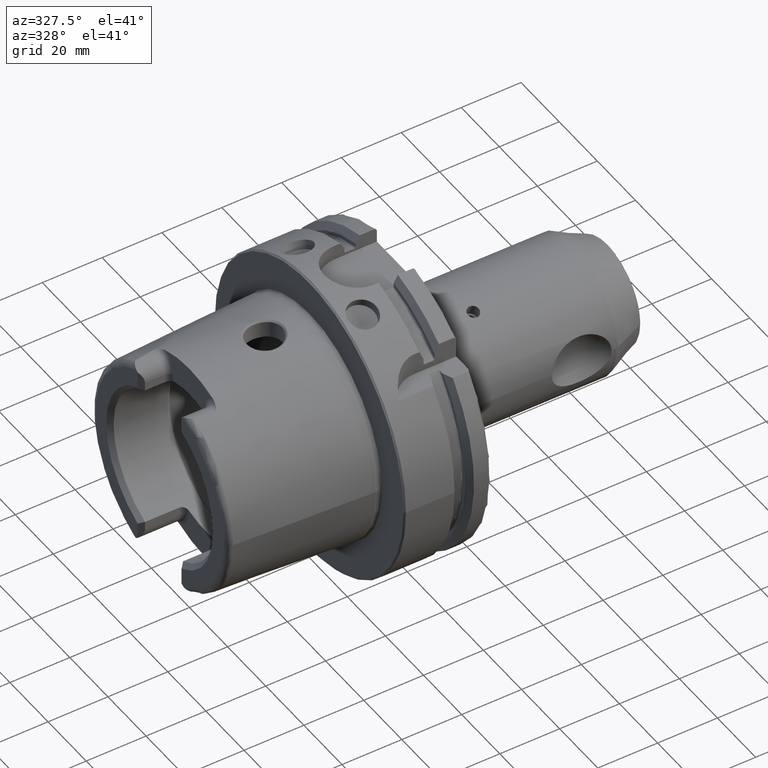
[diagram: clean part render]
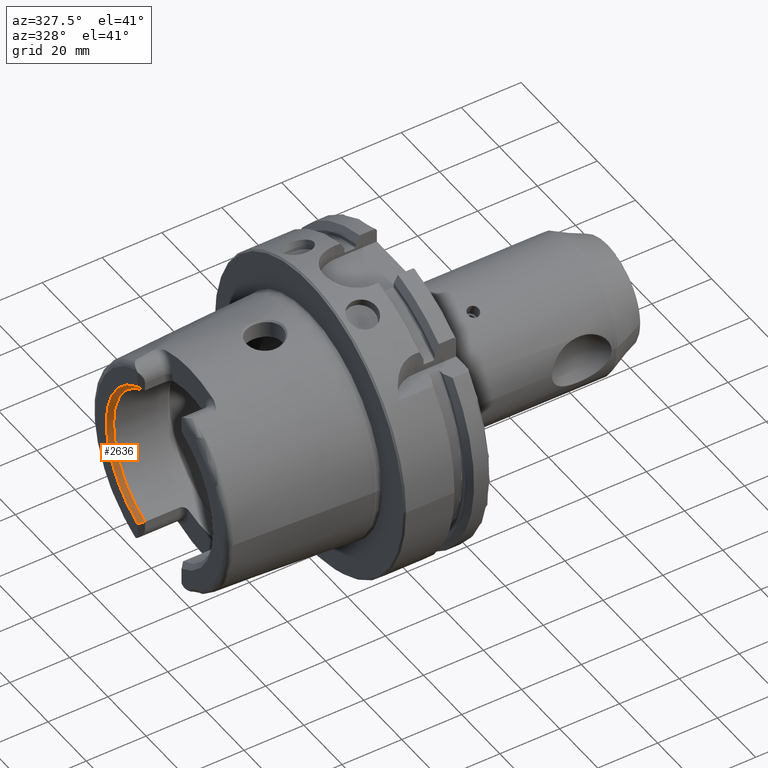
[diagram: same view with one face highlighted and labeled with its STEP entity id]
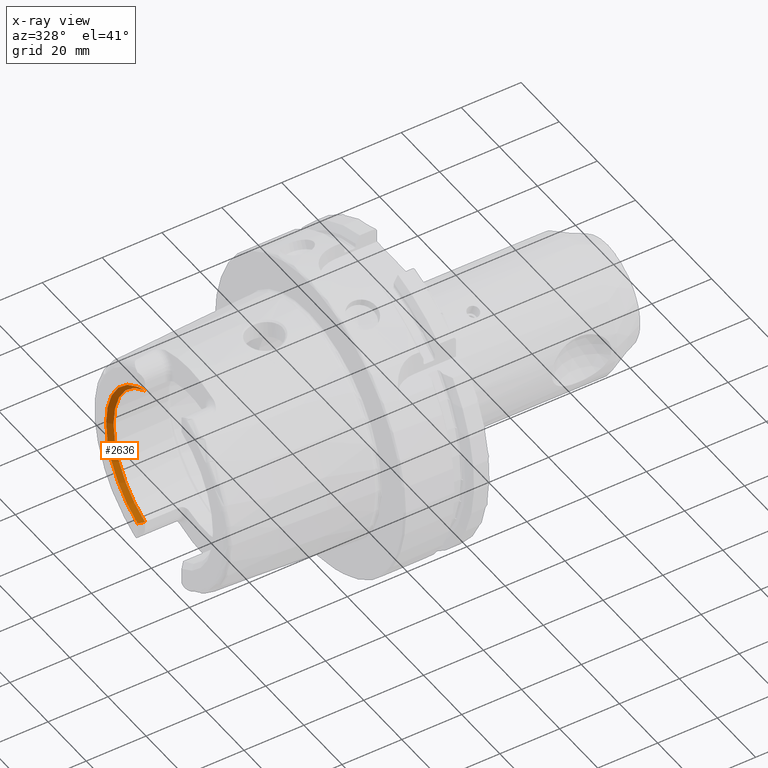
[diagram: x-ray of the same camera — body ghosted, the highlighted face saturated]
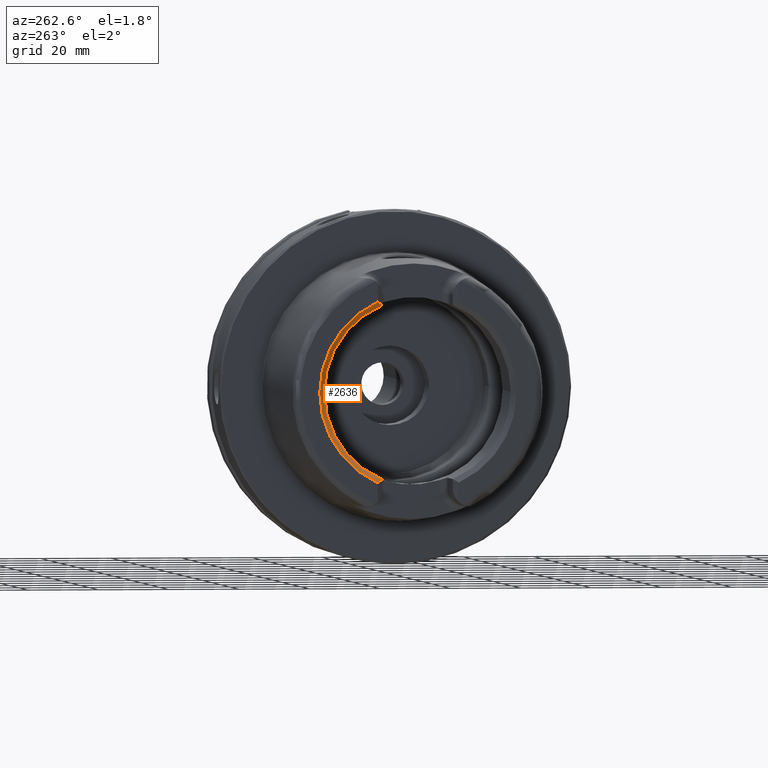
[diagram: same view with one face highlighted and labeled with its STEP entity id]
A machine part, auxiliary view. The second image highlights one B-rep face of the part: STEP entity #2636.
The next image is the same camera in x-ray: the body ghosted, the highlighted face saturated — about 0% of this face is hidden behind the body in this view.
A second angle (auxiliary view) of the same face is appended — the face is thin or edge-on in the first view.
In plain terms, the highlighted conical surface has half-angle 45 deg.
Its self-contained STEP definition (entity closure, byte-faithful):
#17=(
BOUNDED_CURVE()
B_SPLINE_CURVE(2,(#4440,#4441,#4442),.UNSPECIFIED.,.F.,.F.)
B_SPLINE_CURVE_WITH_KNOTS((3,3),(0.,0.234021007786958),.UNSPECIFIED.)
CURVE()
GEOMETRIC_REPRESENTATION_ITEM()
RATIONAL_B_SPLINE_CURVE((1.,1.,1.))
REPRESENTATION_ITEM('')
);
#20=(
BOUNDED_CURVE()
B_SPLINE_CURVE(2,(#4560,#4561,#4562),.UNSPECIFIED.,.F.,.F.)
B_SPLINE_CURVE_WITH_KNOTS((3,3),(0.,0.234021007786958),.UNSPECIFIED.)
CURVE()
GEOMETRIC_REPRESENTATION_ITEM()
RATIONAL_B_SPLINE_CURVE((1.,1.,1.))
REPRESENTATION_ITEM('')
);
#83=CONICAL_SURFACE('',#2937,27.25,0.785398163397447);
#541=CIRCLE('',#2938,26.5);
#542=CIRCLE('',#2939,28.);
#732=FACE_OUTER_BOUND('',#882,.T.);
#882=EDGE_LOOP('',(#2366,#2367,#2368,#2369));
#1096=VERTEX_POINT('',#4437);
#1097=VERTEX_POINT('',#4439);
#1122=VERTEX_POINT('',#4557);
#1123=VERTEX_POINT('',#4559);
#1413=EDGE_CURVE('',#1096,#1097,#17,.T.);
#1446=EDGE_CURVE('',#1122,#1123,#20,.T.);
#1647=EDGE_CURVE('',#1096,#1123,#541,.T.);
#1648=EDGE_CURVE('',#1122,#1097,#542,.T.);
#2366=ORIENTED_EDGE('',*,*,#1413,.F.);
#2367=ORIENTED_EDGE('',*,*,#1647,.T.);
#2368=ORIENTED_EDGE('',*,*,#1446,.F.);
#2369=ORIENTED_EDGE('',*,*,#1648,.T.);
#2636=ADVANCED_FACE('',(#732),#83,.F.);
#2937=AXIS2_PLACEMENT_3D('',#5818,#3631,#3632);
#2938=AXIS2_PLACEMENT_3D('',#5819,#3633,#3634);
#2939=AXIS2_PLACEMENT_3D('',#5820,#3635,#3636);
#3631=DIRECTION('center_axis',(-1.,0.,0.));
#3632=DIRECTION('ref_axis',(0.,1.,-1.22464679914735E-16));
#3633=DIRECTION('center_axis',(1.,0.,0.));
#3634=DIRECTION('ref_axis',(0.,-1.,0.));
#3635=DIRECTION('center_axis',(-1.,0.,0.));
#3636=DIRECTION('ref_axis',(0.,-1.,0.));
#4437=CARTESIAN_POINT('',(-48.5,10.01,-24.5367051577835));
#4439=CARTESIAN_POINT('',(-50.,11.51,-25.5248878547977));
#4440=CARTESIAN_POINT('Ctrl Pts',(-48.5,10.01,-24.5367051577835));
#4441=CARTESIAN_POINT('Ctrl Pts',(-49.2351954966234,10.7451954966234,-25.0307965062902));
#4442=CARTESIAN_POINT('Ctrl Pts',(-50.,11.51,-25.5248878547977));
#4557=CARTESIAN_POINT('',(-50.,11.51,25.5248878547977));
#4559=CARTESIAN_POINT('',(-48.5,10.01,24.5367051577835));
#4560=CARTESIAN_POINT('Ctrl Pts',(-50.,11.51,25.5248878547977));
#4561=CARTESIAN_POINT('Ctrl Pts',(-49.2351954966234,10.7451954966234,25.0307965062902));
#4562=CARTESIAN_POINT('Ctrl Pts',(-48.5,10.01,24.5367051577835));
#5818=CARTESIAN_POINT('Origin',(-49.25,0.,0.));
#5819=CARTESIAN_POINT('Origin',(-48.5,0.,0.));
#5820=CARTESIAN_POINT('Origin',(-50.,0.,0.));